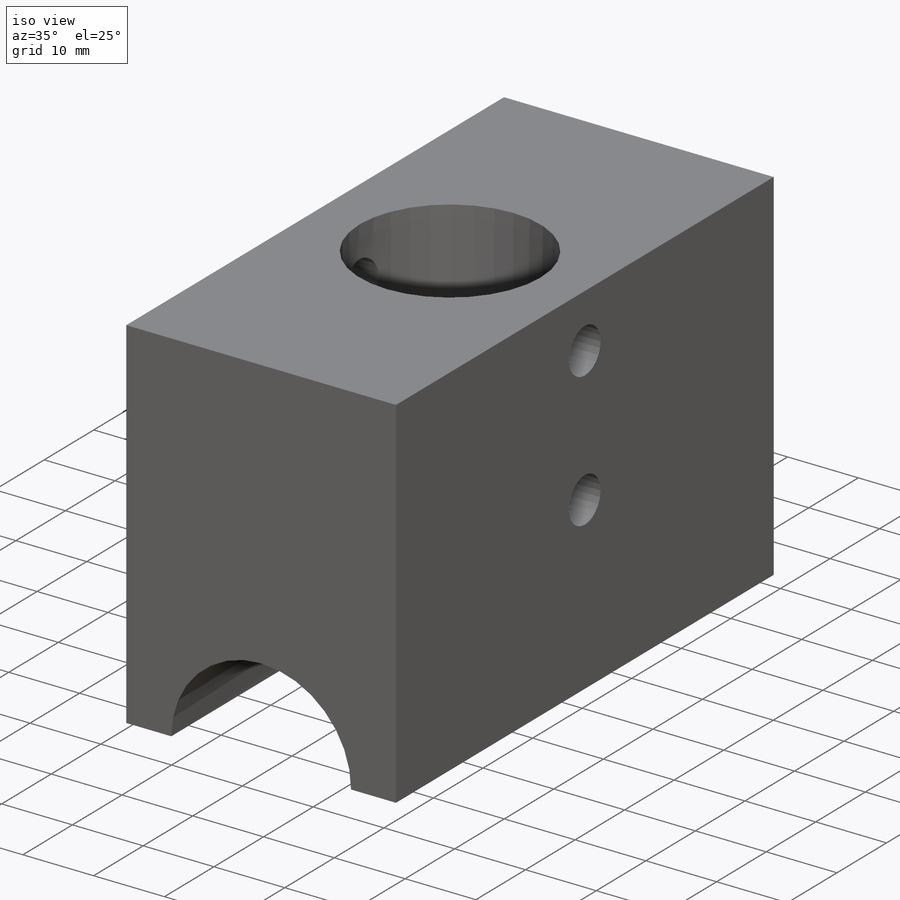
[diagram: iso view]
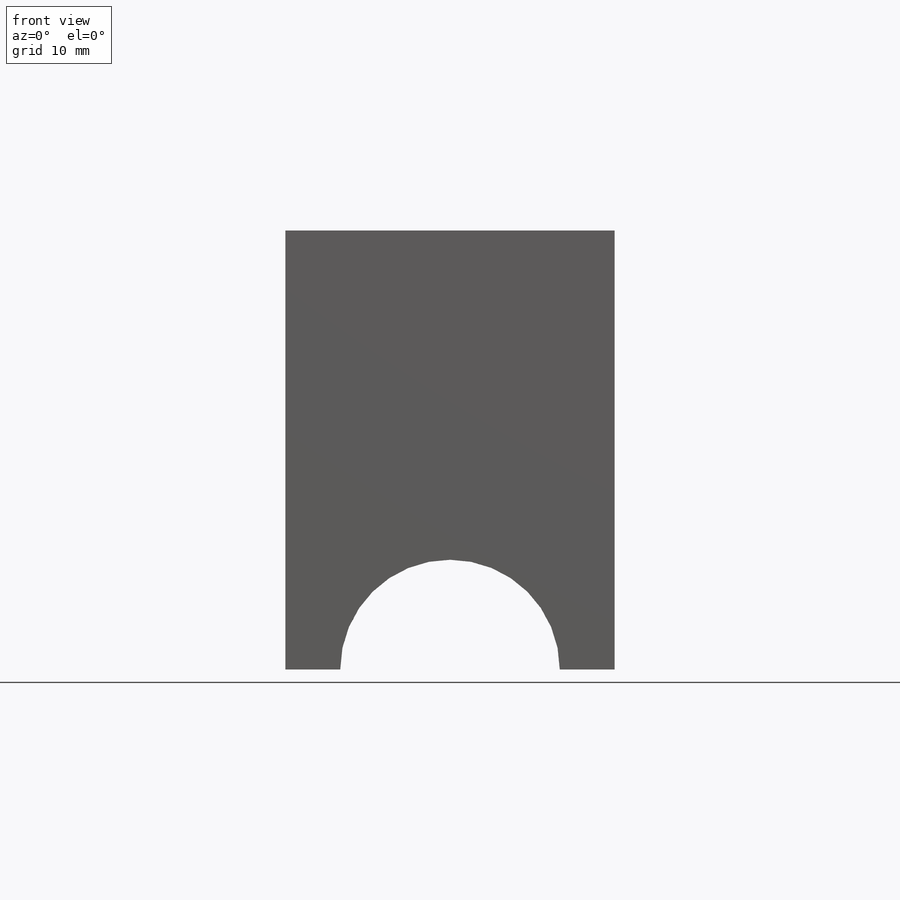
[diagram: front view]
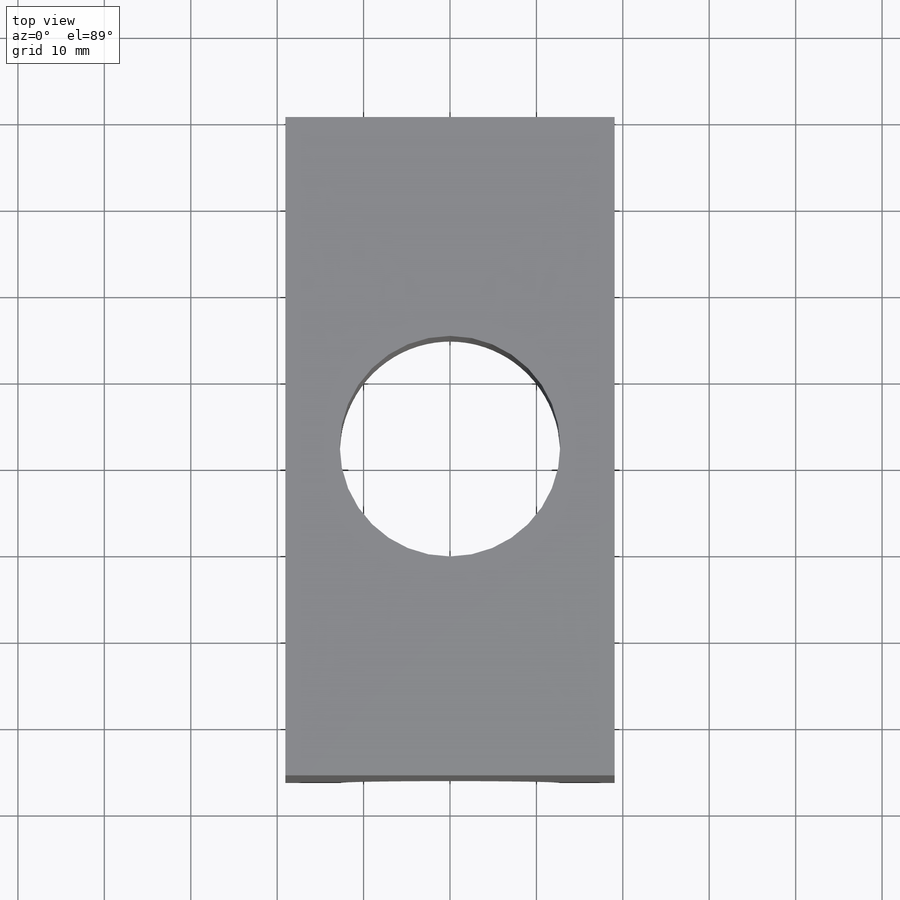
[diagram: top view]
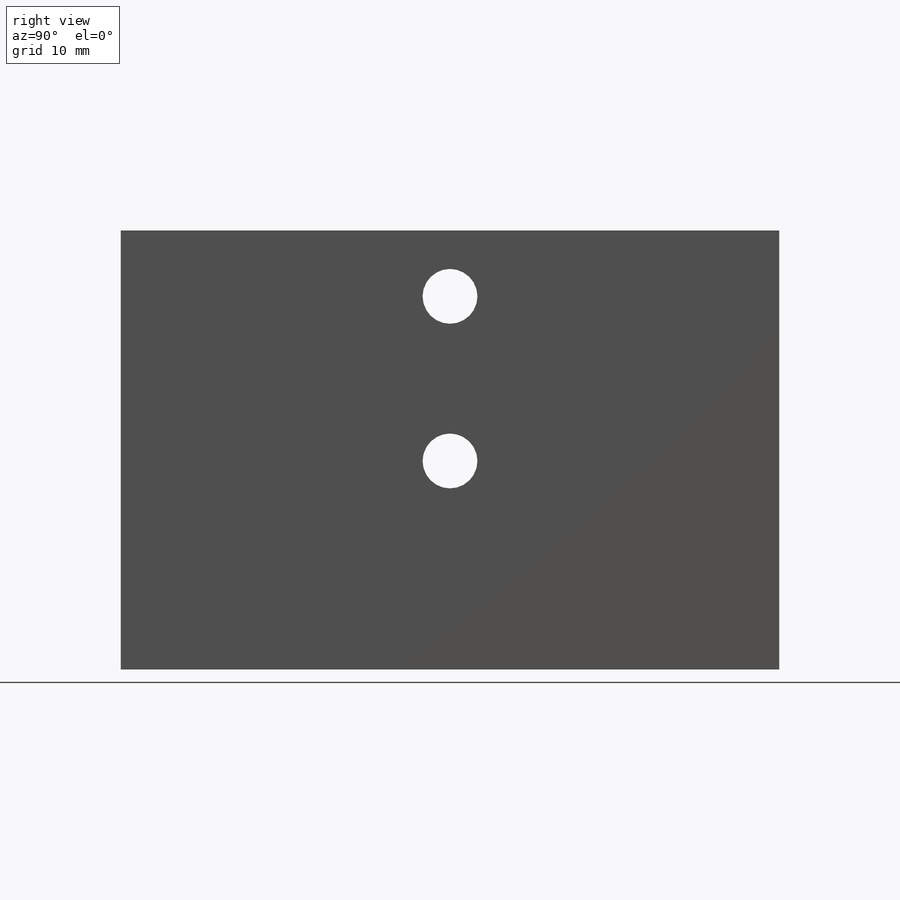
[diagram: right view]
SOLIDWORKS PART (.sldprt)
format: sldprt  version: not decoded by parser v0  size: 251,392 bytes
history: native  units: mm
features: sketch x7, cut_extrude x5, material x1, extrude x1, plane x1, cut_revolve x1 (+12 scaffold rows collapsed)
feature tree (28):
  scaffold x12  (default folders/planes/origin — collapsed)
  material  "6061-T6 (SS)"
  sketch  "Sketch1"  dims[D1=50.8mm D2=38.1mm]
  extrude  "Boss-Extrude1"  Depth=76.2mm
  sketch  "Sketch2"  dims[D1=796.0995mm]
  cut_extrude  "Cut-Extrude1"  [1 undecoded]
  plane  "Plane1"
  sketch  "Sketch3"  dims[D1=25.4mm D2=796.0995mm D3=806.45mm D4=254.0mm]
  cut_revolve  "Cut-Revolve1"  Angle=360deg
  sketch  "Sketch4"
  cut_extrude  "Cut-Extrude2"  Depth=12.7mm
  sketch  "Sketch5"  dims[D1=25.4mm]
  cut_extrude  "Cut-Extrude3"  [1 undecoded]
  sketch  "Sketch6"  dims[D1=25.527mm]
  cut_extrude  "Cut-Extrude4"  Depth=50.8mm
  sketch  "Sketch7"  dims[D1=6.35mm D2=7.62mm D3=19.05mm]
  cut_extrude  "Cut-Extrude5"  [1 undecoded]
decode coverage: 10 of 14 modeling features carry decoded parameters
note: 3 parameter values undecoded
summary: no parameter record found for 3 features
note: suppression state not decoded; provenance and decode notes live in map.json
